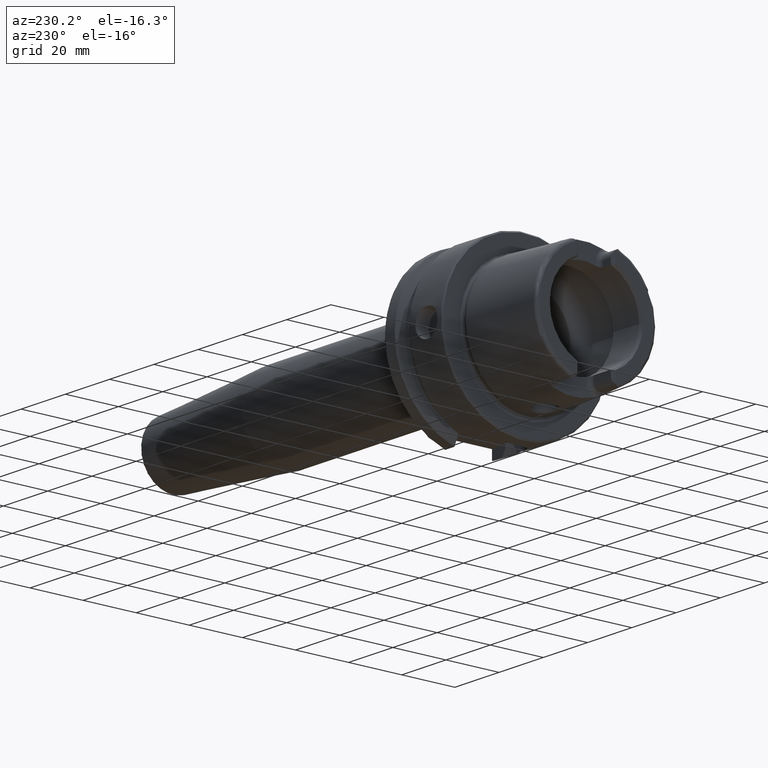
[diagram: clean part render]
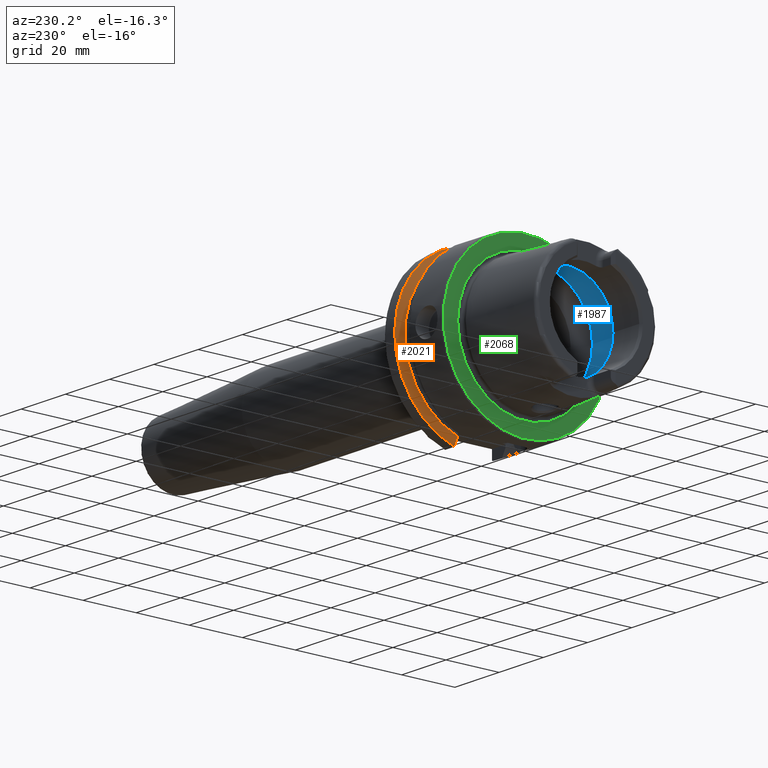
[diagram: same view with three faces highlighted in distinct colors, each labeled with its STEP entity id]
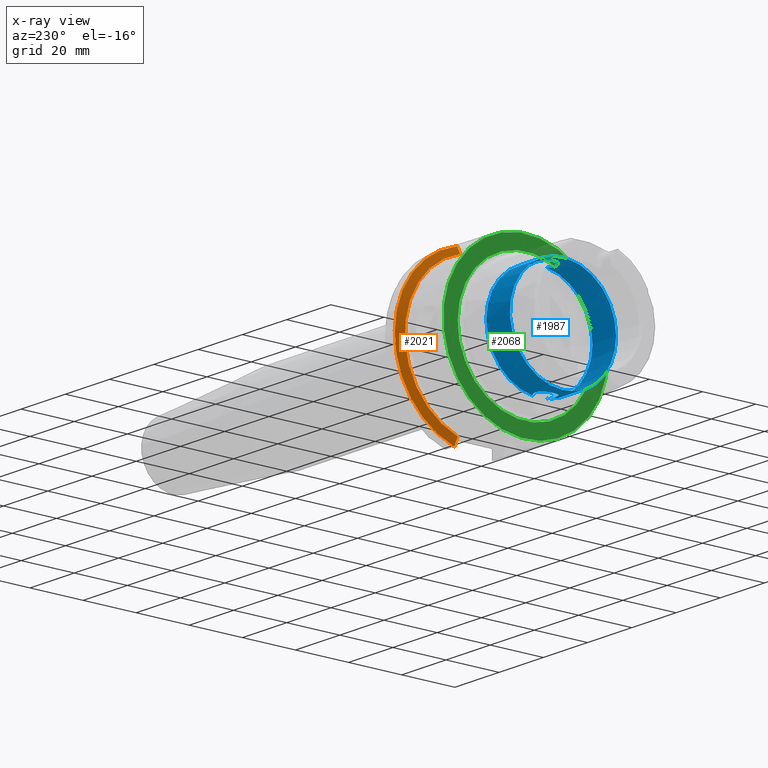
[diagram: x-ray of the same camera — body ghosted, the three highlighted faces saturated]
A machine part, auxiliary view with three faces highlighted in distinct colors.
The next image is the same camera in x-ray (body ghosted, the three faces saturated) — at least one of them is partly hidden behind the body in this view.
Their STEP definitions:

[orange] entity #2021 — the highlighted conical surface has half-angle 60 deg.
#24=(
BOUNDED_CURVE()
B_SPLINE_CURVE(2,(#3960,#3961,#3962),.UNSPECIFIED.,.F.,.F.)
B_SPLINE_CURVE_WITH_KNOTS((3,3),(0.,0.311314369989023),.UNSPECIFIED.)
CURVE()
GEOMETRIC_REPRESENTATION_ITEM()
RATIONAL_B_SPLINE_CURVE((1.,1.00102053193238,1.))
REPRESENTATION_ITEM('')
);
#27=(
BOUNDED_CURVE()
B_SPLINE_CURVE(2,(#4157,#4158,#4159),.UNSPECIFIED.,.F.,.F.)
B_SPLINE_CURVE_WITH_KNOTS((3,3),(0.,0.308905667770379),.UNSPECIFIED.)
CURVE()
GEOMETRIC_REPRESENTATION_ITEM()
RATIONAL_B_SPLINE_CURVE((1.,1.00099999355179,1.))
REPRESENTATION_ITEM('')
);
#276=FACE_OUTER_BOUND('',#401,.T.);
#401=EDGE_LOOP('',(#1670,#1671,#1672,#1673));
#744=CIRCLE('',#2237,31.5);
#748=CIRCLE('',#2245,28.8975952641916);
#932=VERTEX_POINT('',#3957);
#933=VERTEX_POINT('',#3959);
#959=VERTEX_POINT('',#4141);
#962=VERTEX_POINT('',#4155);
#1181=EDGE_CURVE('',#933,#932,#24,.T.);
#1221=EDGE_CURVE('',#933,#959,#744,.T.);
#1228=EDGE_CURVE('',#932,#962,#748,.T.);
#1229=EDGE_CURVE('',#962,#959,#27,.T.);
#1670=ORIENTED_EDGE('',*,*,#1181,.T.);
#1671=ORIENTED_EDGE('',*,*,#1228,.T.);
#1672=ORIENTED_EDGE('',*,*,#1229,.T.);
#1673=ORIENTED_EDGE('',*,*,#1221,.F.);
#1946=CONICAL_SURFACE('',#2244,30.1987976320958,1.0471975511966);
#2021=ADVANCED_FACE('',(#276),#1946,.T.);
#2237=AXIS2_PLACEMENT_3D('',#4142,#2709,#2710);
#2244=AXIS2_PLACEMENT_3D('',#4154,#2726,#2727);
#2245=AXIS2_PLACEMENT_3D('',#4156,#2728,#2729);
#2709=DIRECTION('center_axis',(1.,0.,0.));
#2710=DIRECTION('ref_axis',(0.,0.,-1.));
#2726=DIRECTION('center_axis',(1.,0.,0.));
#2727=DIRECTION('ref_axis',(0.,1.,0.));
#2728=DIRECTION('center_axis',(1.,0.,0.));
#2729=DIRECTION('ref_axis',(0.,0.,-1.));
#3957=CARTESIAN_POINT('',(19.875,9.,-27.4603534582684));
#3959=CARTESIAN_POINT('',(21.3774990747593,9.,-30.1869176962472));
#3960=CARTESIAN_POINT('Ctrl Pts',(21.3774990747593,9.,-30.1869176962472));
#3961=CARTESIAN_POINT('Ctrl Pts',(20.5907174110267,9.,-28.7648946319029));
#3962=CARTESIAN_POINT('Ctrl Pts',(19.875,9.,-27.4603534582684));
#4141=CARTESIAN_POINT('',(21.3774990747593,8.,30.4671954731642));
#4142=CARTESIAN_POINT('Origin',(21.3774990747593,0.,0.));
#4154=CARTESIAN_POINT('Origin',(20.6262495373797,0.,0.));
#4155=CARTESIAN_POINT('',(19.875,8.,27.7681654426977));
#4156=CARTESIAN_POINT('Origin',(19.875,0.,0.));
#4157=CARTESIAN_POINT('Ctrl Pts',(19.875,8.,27.7681654426977));
#4158=CARTESIAN_POINT('Ctrl Pts',(20.5914314297926,8.,29.0595327079868));
#4159=CARTESIAN_POINT('Ctrl Pts',(21.3774990747593,8.,30.4671954731642));

[blue] entity #1987 — the highlighted cylindrical surface (bore or boss wall) has radius 20 mm, axis along (-1, 0, 0).
#50=B_SPLINE_CURVE_WITH_KNOTS('',3,(#3514,#3515,#3516,#3517,#3518,#3519,
#3520,#3521,#3522,#3523,#3524,#3525,#3526,#3527,#3528,#3529,#3530,#3531,
#3532,#3533,#3534,#3535,#3536,#3537,#3538,#3539,#3540,#3541,#3542,#3543,
#3544),.UNSPECIFIED.,.F.,.F.,(4,2,2,2,2,2,2,2,2,2,2,3,2,2,4),(-1.43107314142755,
-1.4161913421645,-1.27456976724955,-1.1329481923346,-0.991326617419658,
-0.849705042504712,-0.708089569336007,-0.566474096167302,-0.424858622998598,
-0.283243149829893,-0.141621574914946,0.,0.141621574914946,0.283243149829893,
0.298124949100151),.UNSPECIFIED.);
#55=B_SPLINE_CURVE_WITH_KNOTS('',3,(#3683,#3684,#3685,#3686,#3687,#3688,
#3689,#3690,#3691,#3692,#3693,#3694,#3695,#3696,#3697,#3698,#3699,#3700,
#3701,#3702,#3703,#3704,#3705,#3706,#3707,#3708,#3709,#3710,#3711,#3712,
#3713),.UNSPECIFIED.,.F.,.F.,(4,2,2,3,2,2,2,2,2,2,2,2,2,2,4),(-0.298124949092949,
-0.283243149829893,-0.141621574914946,0.,0.141621574914946,0.283243149829893,
0.424858622998598,0.566474096167302,0.708089569336007,0.849705042504712,
0.991326617419658,1.1329481923346,1.27456976724955,1.4161913421645,1.43107314143475),
 .UNSPECIFIED.);
#187=CYLINDRICAL_SURFACE('',#2173,20.);
#242=FACE_OUTER_BOUND('',#367,.T.);
#367=EDGE_LOOP('',(#1486,#1487,#1488,#1489,#1490,#1491,#1492,#1493,#1494));
#501=LINE('',#3729,#608);
#608=VECTOR('',#2549,20.);
#711=CIRCLE('',#2174,20.);
#712=CIRCLE('',#2175,20.);
#713=CIRCLE('',#2176,20.);
#714=CIRCLE('',#2177,20.);
#715=CIRCLE('',#2178,20.);
#882=VERTEX_POINT('',#3500);
#883=VERTEX_POINT('',#3513);
#886=VERTEX_POINT('',#3668);
#888=VERTEX_POINT('',#3682);
#889=VERTEX_POINT('',#3726);
#890=VERTEX_POINT('',#3728);
#891=VERTEX_POINT('',#3730);
#1110=EDGE_CURVE('',#883,#882,#50,.T.);
#1116=EDGE_CURVE('',#888,#886,#55,.T.);
#1119=EDGE_CURVE('',#889,#886,#711,.T.);
#1120=EDGE_CURVE('',#889,#890,#501,.T.);
#1121=EDGE_CURVE('',#890,#891,#712,.T.);
#1122=EDGE_CURVE('',#891,#890,#713,.T.);
#1123=EDGE_CURVE('',#883,#889,#714,.T.);
#1124=EDGE_CURVE('',#888,#882,#715,.T.);
#1486=ORIENTED_EDGE('',*,*,#1116,.T.);
#1487=ORIENTED_EDGE('',*,*,#1119,.F.);
#1488=ORIENTED_EDGE('',*,*,#1120,.T.);
#1489=ORIENTED_EDGE('',*,*,#1121,.T.);
#1490=ORIENTED_EDGE('',*,*,#1122,.T.);
#1491=ORIENTED_EDGE('',*,*,#1120,.F.);
#1492=ORIENTED_EDGE('',*,*,#1123,.F.);
#1493=ORIENTED_EDGE('',*,*,#1110,.T.);
#1494=ORIENTED_EDGE('',*,*,#1124,.F.);
#1987=ADVANCED_FACE('',(#242),#187,.F.);
#2173=AXIS2_PLACEMENT_3D('',#3725,#2545,#2546);
#2174=AXIS2_PLACEMENT_3D('',#3727,#2547,#2548);
#2175=AXIS2_PLACEMENT_3D('',#3731,#2550,#2551);
#2176=AXIS2_PLACEMENT_3D('',#3732,#2552,#2553);
#2177=AXIS2_PLACEMENT_3D('',#3733,#2554,#2555);
#2178=AXIS2_PLACEMENT_3D('',#3734,#2556,#2557);
#2545=DIRECTION('center_axis',(-1.,0.,0.));
#2546=DIRECTION('ref_axis',(0.,1.,0.));
#2547=DIRECTION('center_axis',(-1.,0.,0.));
#2548=DIRECTION('ref_axis',(0.,0.,1.));
#2549=DIRECTION('',(-1.,0.,0.));
#2550=DIRECTION('center_axis',(-1.,0.,0.));
#2551=DIRECTION('ref_axis',(0.,0.,1.));
#2552=DIRECTION('center_axis',(-1.,0.,0.));
#2553=DIRECTION('ref_axis',(0.,0.,1.));
#2554=DIRECTION('center_axis',(-1.,0.,0.));
#2555=DIRECTION('ref_axis',(0.,0.,1.));
#2556=DIRECTION('center_axis',(-1.,0.,0.));
#2557=DIRECTION('ref_axis',(0.,0.,1.));
#3500=CARTESIAN_POINT('',(-6.2449979983984,2.54410376580264,-19.8375284758165));
#3513=CARTESIAN_POINT('',(-6.2449979983984,-2.54410376580264,-19.8375284758165));
#3514=CARTESIAN_POINT('Ctrl Pts',(-6.2449979983984,-2.54410376580264,-19.8375284758165));
#3515=CARTESIAN_POINT('Ctrl Pts',(-6.27894943420456,-2.58086966932454,-19.8328133585216));
#3516=CARTESIAN_POINT('Ctrl Pts',(-6.31342869219743,-2.61672955109653,-19.8281105439642));
#3517=CARTESIAN_POINT('Ctrl Pts',(-6.68067160381732,-2.98397246271642,-19.7789868876592));
#3518=CARTESIAN_POINT('Ctrl Pts',(-7.10159661632629,-3.27238367725626,-19.731429741537));
#3519=CARTESIAN_POINT('Ctrl Pts',(-8.0251754070192,-3.65542701546408,-19.6640704965084));
#3520=CARTESIAN_POINT('Ctrl Pts',(-8.52792808361685,-3.75,-19.6452920568771));
#3521=CARTESIAN_POINT('Ctrl Pts',(-9.47207191638316,-3.75,-19.6452920568771));
#3522=CARTESIAN_POINT('Ctrl Pts',(-9.97482459298081,-3.65542701546408,-19.6640704965084));
#3523=CARTESIAN_POINT('Ctrl Pts',(-10.8984033836737,-3.27238367725626,-19.731429741537));
#3524=CARTESIAN_POINT('Ctrl Pts',(-11.3193283961827,-2.98397246271642,-19.7789868876592));
#3525=CARTESIAN_POINT('Ctrl Pts',(-11.9839581446669,-2.31934271423217,-19.8678900149943));
#3526=CARTESIAN_POINT('Ctrl Pts',(-12.2723805817074,-1.89841159537053,-19.9150796801946));
#3527=CARTESIAN_POINT('Ctrl Pts',(-12.6554320620407,-0.974811677040414,
-19.9815942165963));
#3528=CARTESIAN_POINT('Ctrl Pts',(-12.75,-0.472051577229017,-20.));
#3529=CARTESIAN_POINT('Ctrl Pts',(-12.75,0.472051577229015,-20.));
#3530=CARTESIAN_POINT('Ctrl Pts',(-12.6554320620407,0.974811677040408,-19.9815942165963));
#3531=CARTESIAN_POINT('Ctrl Pts',(-12.2723805817074,1.89841159537052,-19.9150796801946));
#3532=CARTESIAN_POINT('Ctrl Pts',(-11.9839581446669,2.31934271423217,-19.8678900149943));
#3533=CARTESIAN_POINT('Ctrl Pts',(-11.3193283961827,2.98397246271642,-19.7789868876592));
#3534=CARTESIAN_POINT('Ctrl Pts',(-10.8984033836737,3.27238367725626,-19.731429741537));
#3535=CARTESIAN_POINT('Ctrl Pts',(-9.97482459298081,3.65542701546408,-19.6640704965084));
#3536=CARTESIAN_POINT('Ctrl Pts',(-9.47207191638316,3.75,-19.6452920568771));
#3537=CARTESIAN_POINT('Ctrl Pts',(-9.,3.75,-19.6452920568771));
#3538=CARTESIAN_POINT('Ctrl Pts',(-8.52792808361685,3.75,-19.6452920568771));
#3539=CARTESIAN_POINT('Ctrl Pts',(-8.0251754070192,3.65542701546408,-19.6640704965084));
#3540=CARTESIAN_POINT('Ctrl Pts',(-7.10159661632629,3.27238367725626,-19.731429741537));
#3541=CARTESIAN_POINT('Ctrl Pts',(-6.68067160381732,2.98397246271642,-19.7789868876592));
#3542=CARTESIAN_POINT('Ctrl Pts',(-6.31342869218053,2.61672955107963,-19.8281105439665));
#3543=CARTESIAN_POINT('Ctrl Pts',(-6.27894943419011,2.5808696693089,-19.8328133585236));
#3544=CARTESIAN_POINT('Ctrl Pts',(-6.2449979983984,2.54410376580264,-19.8375284758165));
#3668=CARTESIAN_POINT('',(-6.2449979983984,-2.54410376580264,19.8375284758165));
#3682=CARTESIAN_POINT('',(-6.2449979983984,2.54410376580264,19.8375284758165));
#3683=CARTESIAN_POINT('Ctrl Pts',(-6.2449979983984,2.54410376580264,19.8375284758165));
#3684=CARTESIAN_POINT('Ctrl Pts',(-6.27894943420456,2.58086966932454,19.8328133585216));
#3685=CARTESIAN_POINT('Ctrl Pts',(-6.31342869219742,2.61672955109653,19.8281105439642));
#3686=CARTESIAN_POINT('Ctrl Pts',(-6.68067160381731,2.98397246271642,19.7789868876592));
#3687=CARTESIAN_POINT('Ctrl Pts',(-7.10159661632629,3.27238367725626,19.731429741537));
#3688=CARTESIAN_POINT('Ctrl Pts',(-8.02517540701919,3.65542701546408,19.6640704965084));
#3689=CARTESIAN_POINT('Ctrl Pts',(-8.52792808361684,3.75,19.6452920568771));
#3690=CARTESIAN_POINT('Ctrl Pts',(-9.,3.75,19.6452920568771));
#3691=CARTESIAN_POINT('Ctrl Pts',(-9.47207191638315,3.75,19.6452920568771));
#3692=CARTESIAN_POINT('Ctrl Pts',(-9.97482459298081,3.65542701546408,19.6640704965084));
#3693=CARTESIAN_POINT('Ctrl Pts',(-10.8984033836737,3.27238367725626,19.731429741537));
#3694=CARTESIAN_POINT('Ctrl Pts',(-11.3193283961827,2.98397246271642,19.7789868876592));
#3695=CARTESIAN_POINT('Ctrl Pts',(-11.9839581446669,2.31934271423217,19.8678900149943));
#3696=CARTESIAN_POINT('Ctrl Pts',(-12.2723805817074,1.89841159537052,19.9150796801946));
#3697=CARTESIAN_POINT('Ctrl Pts',(-12.6554320620407,0.97481167704041,19.9815942165963));
#3698=CARTESIAN_POINT('Ctrl Pts',(-12.75,0.472051577229015,20.));
#3699=CARTESIAN_POINT('Ctrl Pts',(-12.75,-0.472051577229017,20.));
#3700=CARTESIAN_POINT('Ctrl Pts',(-12.6554320620407,-0.974811677040414,
19.9815942165963));
#3701=CARTESIAN_POINT('Ctrl Pts',(-12.2723805817074,-1.89841159537053,19.9150796801946));
#3702=CARTESIAN_POINT('Ctrl Pts',(-11.9839581446669,-2.31934271423217,19.8678900149943));
#3703=CARTESIAN_POINT('Ctrl Pts',(-11.3193283961827,-2.98397246271642,19.7789868876592));
#3704=CARTESIAN_POINT('Ctrl Pts',(-10.8984033836737,-3.27238367725626,19.731429741537));
#3705=CARTESIAN_POINT('Ctrl Pts',(-9.9748245929808,-3.65542701546408,19.6640704965084));
#3706=CARTESIAN_POINT('Ctrl Pts',(-9.47207191638315,-3.75,19.6452920568771));
#3707=CARTESIAN_POINT('Ctrl Pts',(-8.52792808361684,-3.75,19.6452920568771));
#3708=CARTESIAN_POINT('Ctrl Pts',(-8.02517540701919,-3.65542701546408,19.6640704965084));
#3709=CARTESIAN_POINT('Ctrl Pts',(-7.10159661632629,-3.27238367725626,19.731429741537));
#3710=CARTESIAN_POINT('Ctrl Pts',(-6.68067160381731,-2.98397246271642,19.7789868876592));
#3711=CARTESIAN_POINT('Ctrl Pts',(-6.31342869218052,-2.61672955107963,19.8281105439665));
#3712=CARTESIAN_POINT('Ctrl Pts',(-6.27894943419011,-2.5808696693089,19.8328133585236));
#3713=CARTESIAN_POINT('Ctrl Pts',(-6.2449979983984,-2.54410376580264,19.8375284758165));
#3725=CARTESIAN_POINT('Origin',(-11.5812812165501,0.,0.));
#3726=CARTESIAN_POINT('',(-6.2449979983984,-20.,2.44929359829471E-15));
#3727=CARTESIAN_POINT('Origin',(-6.2449979983984,0.,0.));
#3728=CARTESIAN_POINT('',(-16.9175644347018,-20.,2.44929359829471E-15));
#3729=CARTESIAN_POINT('',(-11.5812812165501,-20.,2.44929359829471E-15));
#3730=CARTESIAN_POINT('',(-16.9175644347018,-2.44929359829471E-15,-20.));
#3731=CARTESIAN_POINT('Origin',(-16.9175644347018,0.,0.));
#3732=CARTESIAN_POINT('Origin',(-16.9175644347018,0.,0.));
#3733=CARTESIAN_POINT('Origin',(-6.2449979983984,0.,0.));
#3734=CARTESIAN_POINT('Origin',(-6.2449979983984,0.,0.));

[green] entity #2068 — the highlighted planar face has unit normal (-1, 0, 0).
#108=FACE_BOUND('',#453,.T.);
#151=PLANE('',#2336);
#323=FACE_OUTER_BOUND('',#452,.T.);
#452=EDGE_LOOP('',(#1919));
#453=EDGE_LOOP('',(#1920));
#792=CIRCLE('',#2335,25.5879092835167);
#793=CIRCLE('',#2337,31.);
#996=VERTEX_POINT('',#4396);
#997=VERTEX_POINT('',#4400);
#1305=EDGE_CURVE('',#996,#996,#792,.T.);
#1306=EDGE_CURVE('',#997,#997,#793,.T.);
#1919=ORIENTED_EDGE('',*,*,#1306,.F.);
#1920=ORIENTED_EDGE('',*,*,#1305,.T.);
#2068=ADVANCED_FACE('',(#323,#108),#151,.T.);
#2335=AXIS2_PLACEMENT_3D('',#4398,#2930,#2931);
#2336=AXIS2_PLACEMENT_3D('',#4399,#2932,#2933);
#2337=AXIS2_PLACEMENT_3D('',#4401,#2934,#2935);
#2930=DIRECTION('center_axis',(1.,0.,0.));
#2931=DIRECTION('ref_axis',(0.,0.,-1.));
#2932=DIRECTION('center_axis',(-1.,0.,0.));
#2933=DIRECTION('ref_axis',(0.,0.,1.));
#2934=DIRECTION('center_axis',(1.,0.,0.));
#2935=DIRECTION('ref_axis',(0.,0.,-1.));
#4396=CARTESIAN_POINT('',(-3.55618312575245E-16,-25.5879092835167,-3.13361512009315E-15));
#4398=CARTESIAN_POINT('Origin',(0.,0.,0.));
#4399=CARTESIAN_POINT('Origin',(0.,31.,0.));
#4400=CARTESIAN_POINT('',(-5.89805981832114E-16,-31.,-3.7964050773568E-15));
#4401=CARTESIAN_POINT('Origin',(0.,0.,0.));